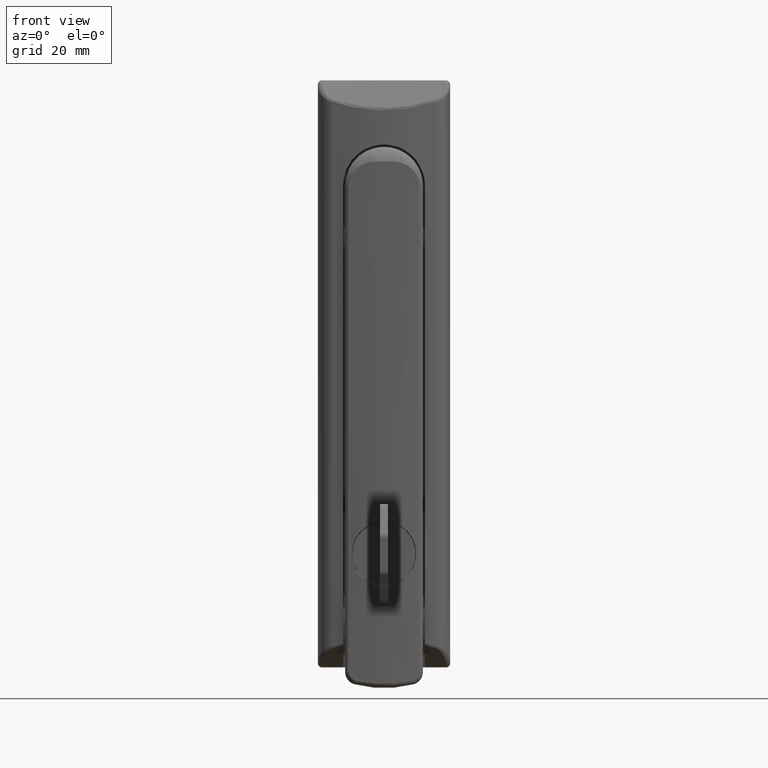
[diagram: clean part render]
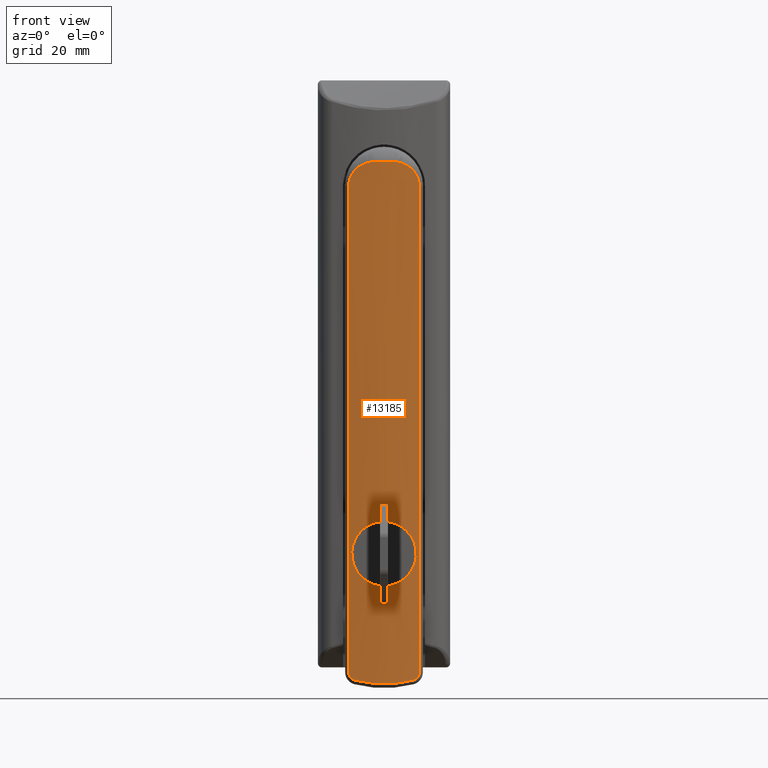
[diagram: same view with one face highlighted and labeled with its STEP entity id]
A machine part, front view. The second image highlights one B-rep face of the part: STEP entity #13185.
In plain terms, the highlighted face is a freeform B-spline surface patch.
Its self-contained STEP definition (entity closure, byte-faithful):
#9635=CARTESIAN_POINT('',(-27.451357045242741,-2.415340772851922,-81.583387166018241));
#9636=VERTEX_POINT('',#9635);
#9642=CARTESIAN_POINT('',(-27.500000000000000,1.306464E-014,-81.200000000007293));
#9643=VERTEX_POINT('',#9642);
#9644=CARTESIAN_POINT('',(-27.451357045242741,-2.415340772851922,-81.583387166018241));
#9645=CARTESIAN_POINT('',(-27.453211739908131,-2.369308168553388,-81.568397040841859));
#9646=CARTESIAN_POINT('',(-27.455020470757962,-2.323098384273979,-81.553823138580412));
#9647=CARTESIAN_POINT('',(-27.461420128162921,-2.154579051065332,-81.502395081543796));
#9648=CARTESIAN_POINT('',(-27.465731443055169,-2.031212702028281,-81.468022866388154));
#9649=CARTESIAN_POINT('',(-27.473656592597681,-1.781960849345053,-81.405191114793340));
#9650=CARTESIAN_POINT('',(-27.477269911358590,-1.656006917154755,-81.376736325688753));
#9651=CARTESIAN_POINT('',(-27.493345741603282,-1.025857236120205,-81.250682844681876));
#9652=CARTESIAN_POINT('',(-27.499998397768628,-0.515889527565438,-81.200000196492226));
#9653=CARTESIAN_POINT('',(-27.500000000000000,1.306464E-014,-81.200000000007293));
#9654=B_SPLINE_CURVE_WITH_KNOTS('',3,(#9644,#9645,#9646,#9647,#9648,#9649,#9650,#9651,#9652,#9653),.UNSPECIFIED.,.F.,.U.,(4,2,2,2,4),(0.950157689214994,0.953125000000003,0.960937500000003,0.968750000000002,1.0),.UNSPECIFIED.);
#9655=EDGE_CURVE('',#9636,#9643,#9654,.T.);
#9657=CARTESIAN_POINT('',(-27.499999927958910,0.002940226353203,-96.799999445860848));
#9658=VERTEX_POINT('',#9657);
#9659=CARTESIAN_POINT('',(-27.500000000000000,1.306464E-014,-81.200000000007293));
#9660=CARTESIAN_POINT('',(-27.499999999999812,0.515889656099083,-81.200000000007293));
#9661=CARTESIAN_POINT('',(-27.493352422148220,1.023050091287324,-81.250676094278390));
#9662=CARTESIAN_POINT('',(-27.474368604633650,1.771257197531436,-81.399519024339185));
#9663=CARTESIAN_POINT('',(-27.466537488519879,2.018555246376664,-81.461362184771559));
#9664=CARTESIAN_POINT('',(-27.452653990084020,2.386278578951864,-81.572882060211612));
#9665=CARTESIAN_POINT('',(-27.447658707667362,2.508569403155144,-81.613279586915382));
#9666=CARTESIAN_POINT('',(-27.437029032417382,2.750864545657644,-81.700047728719468));
#9667=CARTESIAN_POINT('',(-27.431415223854678,2.870442046210234,-81.746249702042405));
#9668=CARTESIAN_POINT('',(-27.401981792035919,3.460645862285785,-81.991061062496414));
#9669=CARTESIAN_POINT('',(-27.374072705129461,3.908440486208586,-82.230676933652632));
#9670=CARTESIAN_POINT('',(-27.335729340066479,4.438104879952905,-82.584436681970345));
#9671=CARTESIAN_POINT('',(-27.327887789421929,4.542520190924529,-82.657925366800015));
#9672=CARTESIAN_POINT('',(-27.311910040244239,4.748269618117722,-82.810465609458120));
#9673=CARTESIAN_POINT('',(-27.303750682207500,4.849877726817822,-82.889749533441531));
#9674=CARTESIAN_POINT('',(-27.279117326479760,5.147501351768049,-83.134070512664877));
#9675=CARTESIAN_POINT('',(-27.262492312349540,5.336390703450390,-83.305484680798031));
#9676=CARTESIAN_POINT('',(-27.212730676576982,5.875372978908299,-83.844587872839767));
#9677=CARTESIAN_POINT('',(-27.179698884055330,6.198047138616587,-84.236897171789806));
#9678=CARTESIAN_POINT('',(-27.140963680078489,6.554432985605673,-84.769652284682849));
#9679=CARTESIAN_POINT('',(-27.133327962796010,6.623488720678344,-84.878610451323368));
#9680=CARTESIAN_POINT('',(-27.118525670438590,6.755427716628378,-85.098634724829054));
#9681=CARTESIAN_POINT('',(-27.111344487383182,6.818450850832886,-85.209882413009495));
#9682=CARTESIAN_POINT('',(-27.090527267606848,6.998836643632352,-85.547270796965336));
#9683=CARTESIAN_POINT('',(-27.064708680080340,7.216235993070193,-86.006825721976284));
#9684=CARTESIAN_POINT('',(-27.043453029753639,7.388017962196979,-86.485567525968762));
#9685=CARTESIAN_POINT('',(-27.029482186582818,7.499476823494497,-86.851944508871540));
#9686=CARTESIAN_POINT('',(-27.025153782095440,7.533728318848084,-86.975292434707470));
#9687=CARTESIAN_POINT('',(-27.017198850373742,7.596317276772499,-87.224481220098866));
#9688=CARTESIAN_POINT('',(-27.013569805595729,7.624673633530243,-87.350506862727130));
#9689=CARTESIAN_POINT('',(-26.997455029889160,7.750036731856808,-87.979931032734612));
#9690=CARTESIAN_POINT('',(-26.990877031217149,7.799714747240953,-88.486372738068937));
#9691=CARTESIAN_POINT('',(-26.990821169457259,7.800140806667280,-89.250288177706452));
#9692=CARTESIAN_POINT('',(-26.992437348031000,7.787845697817852,-89.505640470593477));
#9693=CARTESIAN_POINT('',(-26.996535757393730,7.756434297262983,-89.825751353943602));
#9694=CARTESIAN_POINT('',(-26.997460853893390,7.749336418883022,-89.889903303123575));
#9695=CARTESIAN_POINT('',(-26.999508954675701,7.733595357016654,-90.017666780371343));
#9696=CARTESIAN_POINT('',(-27.002878820207791,7.707658700948612,-90.208634739015892));
#9697=CARTESIAN_POINT('',(-27.007122542060820,7.674828794079799,-90.397595106743168));
#9698=CARTESIAN_POINT('',(-27.023126749178470,7.550328871954661,-91.023076749933651));
#9699=CARTESIAN_POINT('',(-27.041877218375362,7.402947765226248,-91.509550193120077));
#9700=CARTESIAN_POINT('',(-27.071446100048579,7.158577595629029,-92.100178893099041));
#9701=CARTESIAN_POINT('',(-27.077666293560089,7.106669183584547,-92.217423686498847));
#9702=CARTESIAN_POINT('',(-27.090685635002821,6.996660161962202,-92.450117192411327));
#9703=CARTESIAN_POINT('',(-27.097450539301480,6.938845470194764,-92.564939115873898));
#9704=CARTESIAN_POINT('',(-27.118334657744509,6.757878484628711,-92.903402083161524));
#9705=CARTESIAN_POINT('',(-27.147823026717791,6.495951409212746,-93.340016228708649));
#9706=CARTESIAN_POINT('',(-27.179686522718949,6.193650390601179,-93.747993915109802));
#9707=CARTESIAN_POINT('',(-27.204138232443629,5.951676240675550,-94.043187263141903));
#9708=CARTESIAN_POINT('',(-27.212381145901620,5.868472233633442,-94.139783512705961));
#9709=CARTESIAN_POINT('',(-27.228994525056510,5.696897532528615,-94.329324480483976));
#9710=CARTESIAN_POINT('',(-27.237373823018050,5.608431413726285,-94.422364527513622));
#9711=CARTESIAN_POINT('',(-27.279349235395411,5.153906488468532,-94.877234704448398));
#9712=CARTESIAN_POINT('',(-27.312340728951099,4.760560945336541,-95.199593229621073));
#9713=CARTESIAN_POINT('',(-27.358235452438439,4.127518566634906,-95.623297114284341));
#9714=CARTESIAN_POINT('',(-27.372937442089619,3.909280448635201,-95.754484553407949));
#9715=CARTESIAN_POINT('',(-27.393757187540839,3.570802130110605,-95.935831309217818));
#9716=CARTESIAN_POINT('',(-27.400506029393242,3.455853886252413,-95.993826737790016));
#9717=CARTESIAN_POINT('',(-27.413463672452320,3.223417352786914,-96.103950949373726));
#9718=CARTESIAN_POINT('',(-27.419653787020469,3.106292350855165,-96.155925599638579));
#9719=CARTESIAN_POINT('',(-27.449078718175350,2.516218362956263,-96.400663406041360));
#9720=CARTESIAN_POINT('',(-27.467735551774059,2.030048300477598,-96.548453843878207));
#9721=CARTESIAN_POINT('',(-27.483683898734750,1.404747715240965,-96.673522631609572));
#9722=CARTESIAN_POINT('',(-27.486504869932610,1.278800357983251,-96.695525931637476));
#9723=CARTESIAN_POINT('',(-27.491376599358649,1.025100278002803,-96.733409283111939));
#9724=CARTESIAN_POINT('',(-27.493431399397210,0.896984538365097,-96.749320566103535));
#9725=CARTESIAN_POINT('',(-27.498354011209919,0.512918405447918,-96.787369048753547));
#9726=CARTESIAN_POINT('',(-27.499987449411751,0.257584846734793,-96.799903457030510));
#9727=CARTESIAN_POINT('',(-27.499999927958910,0.002940226352888,-96.799999445860834));
#9728=B_SPLINE_CURVE_WITH_KNOTS('',3,(#9659,#9660,#9661,#9662,#9663,#9664,#9665,#9666,#9667,#9668,#9669,#9670,#9671,#9672,#9673,#9674,#9675,#9676,#9677,#9678,#9679,#9680,#9681,#9682,#9683,#9684,#9685,#9686,#9687,#9688,#9689,#9690,#9691,#9692,#9693,#9694,#9695,#9696,#9697,#9698,#9699,#9700,#9701,#9702,#9703,#9704,#9705,#9706,#9707,#9708,#9709,#9710,#9711,#9712,#9713,#9714,#9715,#9716,#9717,#9718,#9719,#9720,#9721,#9722,#9723,#9724,#9725,#9726,#9727),.UNSPECIFIED.,.F.,.U.,(4,2,2,2,2,2,2,2,2,2,2,2,1,2,2,2,2,2,2,1,2,2,2,2,1,2,2,2,2,2,2,2,2,2,2,4),(0.0,0.031249999999997,0.046874999999995,0.054687499999994,0.062499999999993,0.093749999999991,0.101562499999990,0.109374999999990,0.124999999999990,0.156249999999989,0.164062499999989,0.171874999999989,0.187499999999988,0.203124999999988,0.210937499999988,0.218749999999987,0.249999999999989,0.265624999999990,0.269531249999990,0.273437499999991,0.281249999999991,0.312499999999992,0.320312499999992,0.328124999999992,0.343749999999993,0.359374999999994,0.367187499999994,0.374999999999995,0.406249999999998,0.421874999999999,0.429687500000000,0.437500000000001,0.468750000000004,0.476562500000005,0.484375000000005,0.500000000000006),.UNSPECIFIED.);
#9729=EDGE_CURVE('',#9643,#9658,#9728,.T.);
#9731=CARTESIAN_POINT('',(-26.993995364518589,-7.775955534954809,-89.611986974741882));
#9732=VERTEX_POINT('',#9731);
#9733=CARTESIAN_POINT('',(-27.499999927958910,0.002940226353203,-96.799999445860848));
#9734=CARTESIAN_POINT('',(-27.500025163954561,-0.506348986408025,-96.800191418448605));
#9735=CARTESIAN_POINT('',(-27.493566535412739,-1.012901785635003,-96.750984757780870));
#9736=CARTESIAN_POINT('',(-27.477644924085549,-1.642588869686279,-96.626164477850551));
#9737=CARTESIAN_POINT('',(-27.474057306665010,-1.768649151163232,-96.597919269611268));
#9738=CARTESIAN_POINT('',(-27.466190100713352,-2.017853934644223,-96.535566493649270));
#9739=CARTESIAN_POINT('',(-27.461906759094639,-2.141224198348409,-96.501430099627399));
#9740=CARTESIAN_POINT('',(-27.448072252203520,-2.507708341298642,-96.390303093229079));
#9741=CARTESIAN_POINT('',(-27.427001970499830,-2.986699904047397,-96.218927757564856));
#9742=CARTESIAN_POINT('',(-27.401347860448571,-3.446693818981062,-96.001817346647485));
#9743=CARTESIAN_POINT('',(-27.380637751369481,-3.784475376769318,-95.821585606063763));
#9744=CARTESIAN_POINT('',(-27.373489503804421,-3.895864785930623,-95.758603342305378));
#9745=CARTESIAN_POINT('',(-27.358746118966351,-4.116192781037065,-95.626721531216646));
#9746=CARTESIAN_POINT('',(-27.351147608516690,-4.225149514607681,-95.557782961195130));
#9747=CARTESIAN_POINT('',(-27.312593481464461,-4.757792801233011,-95.202092188590981));
#9748=CARTESIAN_POINT('',(-27.279636905637439,-5.150345471035728,-94.879833006506090));
#9749=CARTESIAN_POINT('',(-27.229855424745409,-5.690126310598955,-94.341074945516624));
#9750=CARTESIAN_POINT('',(-27.213202221529919,-5.861819276444642,-94.152193897877424));
#9751=CARTESIAN_POINT('',(-27.188495725111810,-6.106617499808759,-93.854454064378473));
#9752=CARTESIAN_POINT('',(-27.180328707819552,-6.185857428735949,-93.753054898967690));
#9753=CARTESIAN_POINT('',(-27.164318806868010,-6.338418573737759,-93.547616144776654));
#9754=CARTESIAN_POINT('',(-27.156456438883321,-6.411933608599551,-93.443343964339107));
#9755=CARTESIAN_POINT('',(-27.117987984481481,-6.765893163036848,-92.914329229255188));
#9756=CARTESIAN_POINT('',(-27.089910121214150,-7.005885227045035,-92.466845470525058));
#9757=CARTESIAN_POINT('',(-27.060239453152231,-7.251281470382709,-91.876673049449394));
#9758=CARTESIAN_POINT('',(-27.054576973176889,-7.297606194980376,-91.757083796541139));
#9759=CARTESIAN_POINT('',(-27.043849332599141,-7.384627350904450,-91.514725790372196));
#9760=CARTESIAN_POINT('',(-27.038815028560681,-7.425073564489634,-91.392626553008157));
#9761=CARTESIAN_POINT('',(-27.024803964249120,-7.536855094302378,-91.025182503691184));
#9762=CARTESIAN_POINT('',(-27.016889550231220,-7.598896733708958,-90.778029703857101));
#9763=CARTESIAN_POINT('',(-27.004081657105520,-7.698550203227406,-90.279431695171013));
#9764=CARTESIAN_POINT('',(-26.999187926578209,-7.736161183031477,-90.027986344768451));
#9765=CARTESIAN_POINT('',(-26.995184019090161,-7.766854632507582,-89.720350318984700));
#9766=CARTESIAN_POINT('',(-26.994553139640860,-7.771686534439469,-89.666219257281981));
#9767=CARTESIAN_POINT('',(-26.993995364518589,-7.775955534954809,-89.611986974741882));
#9768=B_SPLINE_CURVE_WITH_KNOTS('',3,(#9733,#9734,#9735,#9736,#9737,#9738,#9739,#9740,#9741,#9742,#9743,#9744,#9745,#9746,#9747,#9748,#9749,#9750,#9751,#9752,#9753,#9754,#9755,#9756,#9757,#9758,#9759,#9760,#9761,#9762,#9763,#9764,#9765,#9766,#9767),.UNSPECIFIED.,.F.,.U.,(4,2,2,2,1,2,2,2,2,2,2,2,2,2,2,2,2,4),(0.500000000000006,0.531250000000009,0.539062500000010,0.546875000000010,0.562500000000012,0.578125000000013,0.585937500000014,0.593750000000014,0.625000000000017,0.640625000000018,0.648437500000018,0.656250000000018,0.687500000000018,0.695312500000018,0.703125000000017,0.718750000000017,0.734375000000016,0.737703603077372),.UNSPECIFIED.);
#9769=EDGE_CURVE('',#9658,#9732,#9768,.T.);
#9861=CARTESIAN_POINT('',(-26.993995364518589,-7.775955534954809,-89.611986974741882));
#9862=CARTESIAN_POINT('',(-26.991934488523029,-7.791725925727036,-89.411644191013892));
#9863=CARTESIAN_POINT('',(-26.990871249455910,-7.799814497280295,-89.209920064450785));
#9864=CARTESIAN_POINT('',(-26.990785969016532,-7.800457593818249,-88.491226806938968));
#9865=CARTESIAN_POINT('',(-26.997428809062530,-7.750261464756480,-87.984053361813167));
#9866=CARTESIAN_POINT('',(-27.016479787427219,-7.602081716059938,-87.235624803400938));
#9867=CARTESIAN_POINT('',(-27.024345276534181,-7.540450323110390,-86.988218981328387));
#9868=CARTESIAN_POINT('',(-27.038294045762282,-7.429223020912744,-86.620283648133849));
#9869=CARTESIAN_POINT('',(-27.043315282020512,-7.388903698911442,-86.497873458007390));
#9870=CARTESIAN_POINT('',(-27.053988086469872,-7.302379602222043,-86.255589825231354));
#9871=CARTESIAN_POINT('',(-27.059624654852339,-7.256297446685645,-86.136006475107365));
#9872=CARTESIAN_POINT('',(-27.089175400534270,-7.012068827350035,-85.545719473031241));
#9873=CARTESIAN_POINT('',(-27.117189165122390,-6.772867378148150,-85.097687190942764));
#9874=CARTESIAN_POINT('',(-27.155639756495098,-6.419476718870008,-84.567557914596478));
#9875=CARTESIAN_POINT('',(-27.163501604755201,-6.346054347079001,-84.463041157485506));
#9876=CARTESIAN_POINT('',(-27.179516900352919,-6.193629217478030,-84.257072818005895));
#9877=CARTESIAN_POINT('',(-27.187692825886661,-6.114400086429294,-84.155357762235695));
#9878=CARTESIAN_POINT('',(-27.212347052509038,-5.870446282509747,-83.857657477435907));
#9879=CARTESIAN_POINT('',(-27.228977848985998,-5.699251393276296,-83.668670762862675));
#9880=CARTESIAN_POINT('',(-27.278731170791939,-5.160709066150552,-83.129286802320067));
#9881=CARTESIAN_POINT('',(-27.311722070594332,-4.768646070725239,-82.806198817969204));
#9882=CARTESIAN_POINT('',(-27.350375628547809,-4.235959857075176,-82.449192636913381));
#9883=CARTESIAN_POINT('',(-27.357989650598061,-4.127056504681613,-82.380043054774120));
#9884=CARTESIAN_POINT('',(-27.372739706503069,-3.907238880259893,-82.247969975953126));
#9885=CARTESIAN_POINT('',(-27.379894267262799,-3.796084657471326,-82.184871236569009));
#9886=CARTESIAN_POINT('',(-27.400631503111178,-3.458945993136178,-82.004237371410028));
#9887=CARTESIAN_POINT('',(-27.423901695406251,-3.043255009606523,-81.807130497885140));
#9888=CARTESIAN_POINT('',(-27.443446358675921,-2.611702591720686,-81.647330605626536));
#9889=CARTESIAN_POINT('',(-27.451357045242741,-2.415340772851922,-81.583387166018241));
#9890=B_SPLINE_CURVE_WITH_KNOTS('',3,(#9861,#9862,#9863,#9864,#9865,#9866,#9867,#9868,#9869,#9870,#9871,#9872,#9873,#9874,#9875,#9876,#9877,#9878,#9879,#9880,#9881,#9882,#9883,#9884,#9885,#9886,#9887,#9888,#9889),.UNSPECIFIED.,.F.,.U.,(4,2,2,2,2,2,2,2,2,2,2,2,2,1,4),(0.737703603077372,0.750000000000015,0.781250000000015,0.796875000000014,0.804687500000014,0.812500000000013,0.843750000000011,0.851562500000011,0.859375000000010,0.875000000000009,0.906250000000006,0.914062500000006,0.921875000000005,0.937500000000004,0.950157689214994),.UNSPECIFIED.);
#9891=EDGE_CURVE('',#9732,#9636,#9890,.T.);
#10572=CARTESIAN_POINT('',(-26.888785688507649,8.542372881354650,-117.666919538914400));
#10573=VERTEX_POINT('',#10572);
#10619=CARTESIAN_POINT('',(-27.086835916465098,7.029152542371470,-119.600273102027000));
#10620=VERTEX_POINT('',#10619);
#10634=CARTESIAN_POINT('',(-26.888785688507649,8.542372881354659,-117.666919538914400));
#10635=CARTESIAN_POINT('',(-26.888785688507649,8.542372881354661,-117.778429580445900));
#10636=CARTESIAN_POINT('',(-26.890142410241889,8.532955746309947,-117.888489649771400));
#10637=CARTESIAN_POINT('',(-26.894120570889260,8.505205989846363,-118.051482461089290));
#10638=CARTESIAN_POINT('',(-26.895771822093430,8.493673248735890,-118.105461987783300));
#10639=CARTESIAN_POINT('',(-26.899725023394350,8.465982680328386,-118.212709246327410));
#10640=CARTESIAN_POINT('',(-26.902039344670719,8.449737487748442,-118.266187622658800));
#10641=CARTESIAN_POINT('',(-26.909834634082721,8.394814853391216,-118.422933633941100));
#10642=CARTESIAN_POINT('',(-26.916173835669561,8.349918493369909,-118.523135106835700));
#10643=CARTESIAN_POINT('',(-26.927251447191729,8.270580297723328,-118.667221754916600));
#10644=CARTESIAN_POINT('',(-26.931206675452671,8.242124760782096,-118.714209265121400));
#10645=CARTESIAN_POINT('',(-26.939632098588831,8.181141940895504,-118.806075407870790));
#10646=CARTESIAN_POINT('',(-26.944125482358441,8.148444265719135,-118.851158341570000));
#10647=CARTESIAN_POINT('',(-26.958169719819448,8.045548261357341,-118.981293209644410));
#10648=CARTESIAN_POINT('',(-26.968268808286290,7.970675279274456,-119.061332750348300));
#10649=CARTESIAN_POINT('',(-26.984365046957251,7.849329896598491,-119.171736367242600));
#10650=CARTESIAN_POINT('',(-26.989889366140890,7.807367475855005,-119.206919749590600));
#10651=CARTESIAN_POINT('',(-27.001240151567099,7.720384972542755,-119.274021715263000));
#10652=CARTESIAN_POINT('',(-27.007087929446332,7.675198473840021,-119.306046356899500));
#10653=CARTESIAN_POINT('',(-27.024919882926032,7.536090150403438,-119.396327360637400));
#10654=CARTESIAN_POINT('',(-27.037059375279430,7.439670855515730,-119.448248637495400));
#10655=CARTESIAN_POINT('',(-27.061697596081121,7.239773543899861,-119.536271402606000));
#10656=CARTESIAN_POINT('',(-27.074196850597360,7.136295180044582,-119.572371973295900));
#10657=CARTESIAN_POINT('',(-27.086835916465098,7.029152542371470,-119.600273102027000));
#10658=B_SPLINE_CURVE_WITH_KNOTS('',3,(#10634,#10635,#10636,#10637,#10638,#10639,#10640,#10641,#10642,#10643,#10644,#10645,#10646,#10647,#10648,#10649,#10650,#10651,#10652,#10653,#10654,#10655,#10656,#10657),.UNSPECIFIED.,.F.,.U.,(4,2,2,2,2,2,2,2,2,2,2,4),(0.0,0.124999999999975,0.187499999999971,0.249999999999966,0.374999999999972,0.437499999999975,0.499999999999978,0.624999999999971,0.687499999999973,0.749999999999975,0.874999999999987,1.0),.UNSPECIFIED.);
#10659=EDGE_CURVE('',#10573,#10620,#10658,.T.);
#10744=CARTESIAN_POINT('',(-27.086835916469848,-7.029152542374240,-119.600273102025990));
#10745=VERTEX_POINT('',#10744);
#10759=CARTESIAN_POINT('',(-27.086835916465098,7.029152542371470,-119.600273102027000));
#10760=CARTESIAN_POINT('',(-27.222414991520509,5.879835032144018,-119.899568102618600));
#10761=CARTESIAN_POINT('',(-27.325403151724618,4.721194973908147,-120.123077242726590));
#10762=CARTESIAN_POINT('',(-27.463967757895229,2.385605788523836,-120.422818092129210));
#10763=CARTESIAN_POINT('',(-27.499554602358039,1.208656447267055,-120.499042944702790));
#10764=CARTESIAN_POINT('',(-27.500106161681501,-0.274268604688648,-120.500228116619100));
#10765=CARTESIAN_POINT('',(-27.498017795927360,-0.571442548221114,-120.495741702391300));
#10766=CARTESIAN_POINT('',(-27.489389347640689,-1.166984028825483,-120.477193840559200));
#10767=CARTESIAN_POINT('',(-27.482831745326351,-1.465816652340811,-120.463094706225800));
#10768=CARTESIAN_POINT('',(-27.456566867984328,-2.359020981342937,-120.406565310108600));
#10769=CARTESIAN_POINT('',(-27.430287108381410,-2.950969652483099,-120.349956597084700));
#10770=CARTESIAN_POINT('',(-27.325957729986769,-4.716452143417397,-120.124284808510590));
#10771=CARTESIAN_POINT('',(-27.222435623711348,-5.879660131015147,-119.899613648808400));
#10772=CARTESIAN_POINT('',(-27.086835916469848,-7.029152542374250,-119.600273102025990));
#10773=B_SPLINE_CURVE_WITH_KNOTS('',3,(#10759,#10760,#10761,#10762,#10763,#10764,#10765,#10766,#10767,#10768,#10769,#10770,#10771,#10772),.UNSPECIFIED.,.F.,.U.,(4,2,2,2,2,2,4),(0.0,0.250000000000000,0.500000000000000,0.562500000000000,0.625000000000000,0.750000000000000,1.0),.UNSPECIFIED.);
#10774=EDGE_CURVE('',#10620,#10745,#10773,.T.);
#10811=CARTESIAN_POINT('',(-26.888785688507649,8.542372881354670,-7.105427E-012));
#10812=VERTEX_POINT('',#10811);
#10834=CARTESIAN_POINT('',(-26.888785688507649,8.542372881354670,-7.105427E-012));
#10835=CARTESIAN_POINT('',(-26.888785688507649,8.542372881354650,-117.666919538914400));
#10836=QUASI_UNIFORM_CURVE('',1,(#10834,#10835),.UNSPECIFIED.,.F.,.U.);
#10837=EDGE_CURVE('',#10812,#10573,#10836,.T.);
#10922=CARTESIAN_POINT('',(-26.888785688513501,-8.542372881357158,-117.666919538913400));
#10923=VERTEX_POINT('',#10922);
#10937=CARTESIAN_POINT('',(-27.086835916469848,-7.029152542374240,-119.600273102025990));
#10938=CARTESIAN_POINT('',(-27.074196920697851,-7.136294585839297,-119.572372128033290));
#10939=CARTESIAN_POINT('',(-27.061681979821120,-7.239905324319176,-119.536236739324390));
#10940=CARTESIAN_POINT('',(-27.043158821610429,-7.390181654555567,-119.470028961198590));
#10941=CARTESIAN_POINT('',(-27.037026398630289,-7.439412816576947,-119.445948772571500));
#10942=CARTESIAN_POINT('',(-27.024861629460769,-7.536127881093952,-119.393703041655300));
#10943=CARTESIAN_POINT('',(-27.018806990409260,-7.583785053502241,-119.365422182941100));
#10944=CARTESIAN_POINT('',(-27.000989012494490,-7.722760628900465,-119.275079147185590));
#10945=CARTESIAN_POINT('',(-26.989654346052451,-7.809461173589753,-119.208066403258200));
#10946=CARTESIAN_POINT('',(-26.973558668908758,-7.930793388102964,-119.097590028556990));
#10947=CARTESIAN_POINT('',(-26.968345239325171,-7.969777032193718,-119.059096662112790));
#10948=CARTESIAN_POINT('',(-26.958246878498329,-8.044769081956250,-118.978709139629700));
#10949=CARTESIAN_POINT('',(-26.953349907780680,-8.080865494031807,-118.936702974056600));
#10950=CARTESIAN_POINT('',(-26.939279944065099,-8.183936051104972,-118.806114940377300));
#10951=CARTESIAN_POINT('',(-26.930878308029300,-8.244607357262673,-118.714491710671890));
#10952=CARTESIAN_POINT('',(-26.916120816826432,-8.350295445043049,-118.522349394263600));
#10953=CARTESIAN_POINT('',(-26.909756964715310,-8.395364882983117,-118.421688995024300));
#10954=CARTESIAN_POINT('',(-26.899337970182749,-8.468767491729491,-118.211546304653890));
#10955=CARTESIAN_POINT('',(-26.895418126799189,-8.496155077392864,-118.104842471380710));
#10956=CARTESIAN_POINT('',(-26.890142184890490,-8.532957096745951,-117.888282667833710));
#10957=CARTESIAN_POINT('',(-26.888785688513501,-8.542372881357146,-117.778426939522700));
#10958=CARTESIAN_POINT('',(-26.888785688513501,-8.542372881357158,-117.666919538913600));
#10959=B_SPLINE_CURVE_WITH_KNOTS('',3,(#10937,#10938,#10939,#10940,#10941,#10942,#10943,#10944,#10945,#10946,#10947,#10948,#10949,#10950,#10951,#10952,#10953,#10954,#10955,#10956,#10957,#10958),.UNSPECIFIED.,.F.,.U.,(4,2,2,2,2,2,2,2,2,2,4),(0.0,0.124999999999997,0.187499999999992,0.249999999999988,0.374999999999988,0.437499999999989,0.499999999999990,0.624999999999992,0.749999999999995,0.874999999999997,1.0),.UNSPECIFIED.);
#10960=EDGE_CURVE('',#10745,#10923,#10959,.T.);
#11112=CARTESIAN_POINT('',(-26.888785688513501,-8.542372881357158,-2.597922E-011));
#11113=VERTEX_POINT('',#11112);
#11168=CARTESIAN_POINT('',(-26.888785688513501,-8.542372881357158,-2.597922E-011));
#11169=CARTESIAN_POINT('',(-26.889060793614611,-8.540461433807419,0.111908788715269));
#11170=CARTESIAN_POINT('',(-26.889607997854700,-8.536659424317739,0.334503584380799));
#11171=CARTESIAN_POINT('',(-26.894057415341479,-8.505673466357870,0.665768538915277));
#11172=CARTESIAN_POINT('',(-26.901143416680760,-8.456083295707797,0.992147089120100));
#11173=CARTESIAN_POINT('',(-26.911068560333799,-8.386124383212787,1.313625108534763));
#11174=CARTESIAN_POINT('',(-26.923694896865889,-8.296254984429599,1.630186935471665));
#11175=CARTESIAN_POINT('',(-26.938948555786592,-8.186345427481188,1.941818592799301));
#11176=CARTESIAN_POINT('',(-26.956713217987630,-8.056417873806254,2.248507284132500));
#11177=CARTESIAN_POINT('',(-26.976854795151301,-7.906477965946521,2.550246519618773));
#11178=CARTESIAN_POINT('',(-26.999230314092280,-7.736443022254136,2.847020365105872));
#11179=CARTESIAN_POINT('',(-27.039906005838901,-7.419934292489797,3.333599158243297));
#11180=CARTESIAN_POINT('',(-27.103955462166379,-6.896072250743217,3.967903385795556));
#11181=CARTESIAN_POINT('',(-27.193733772940590,-6.076150266717725,4.655992195713410));
#11182=CARTESIAN_POINT('',(-27.289934837509129,-5.058072203537618,5.248699121315499));
#11183=CARTESIAN_POINT('',(-27.384323772984001,-3.810591610910118,5.692810870802503));
#11184=CARTESIAN_POINT('',(-27.454939256228869,-2.454705279000979,5.899348451783753));
#11185=CARTESIAN_POINT('',(-27.487006932639080,-1.357578971887023,5.917115846582353));
#11186=CARTESIAN_POINT('',(-27.498234927757899,-0.565780877142598,5.908882882290454));
#11187=CARTESIAN_POINT('',(-27.500904082879000,0.004494835565734,5.899383436624254));
#11188=CARTESIAN_POINT('',(-27.498147516464272,0.575230787981571,5.893554080287181));
#11189=CARTESIAN_POINT('',(-27.490984641834931,1.074614370009674,5.910738222681507));
#11190=CARTESIAN_POINT('',(-27.481130561649191,1.520942532908516,5.918366422781512));
#11191=CARTESIAN_POINT('',(-27.469425240578762,1.931822261100164,5.903110236270135));
#11192=CARTESIAN_POINT('',(-27.447151379871379,2.554231113896980,5.865209244168603));
#11193=CARTESIAN_POINT('',(-27.408858974850919,3.351918138700240,5.764783789916142));
#11194=CARTESIAN_POINT('',(-27.349552784804089,4.277167090586146,5.530859609593200));
#11195=CARTESIAN_POINT('',(-27.264338833680490,5.355886997389605,5.104079582233098));
#11196=CARTESIAN_POINT('',(-27.148444879280579,6.525139014874834,4.365298389487940));
#11197=CARTESIAN_POINT('',(-27.038833595001240,7.435187341524785,3.359043226351391));
#11198=CARTESIAN_POINT('',(-26.966675273953509,7.985001030775643,2.426807940362544));
#11199=CARTESIAN_POINT('',(-26.928237162274129,8.264334923009704,1.736111503347196));
#11200=CARTESIAN_POINT('',(-26.904451831394251,8.433025234620619,1.106806361588443));
#11201=CARTESIAN_POINT('',(-26.891251929748680,8.525256091544287,0.554386253737978));
#11202=CARTESIAN_POINT('',(-26.889606004871389,8.536679528028570,0.184398877165029));
#11203=CARTESIAN_POINT('',(-26.888785688507649,8.542372881354670,-7.105427E-012));
#11204=B_SPLINE_CURVE_WITH_KNOTS('',3,(#11168,#11169,#11170,#11171,#11172,#11173,#11174,#11175,#11176,#11177,#11178,#11179,#11180,#11181,#11182,#11183,#11184,#11185,#11186,#11187,#11188,#11189,#11190,#11191,#11192,#11193,#11194,#11195,#11196,#11197,#11198,#11199,#11200,#11201,#11202,#11203),.UNSPECIFIED.,.F.,.U.,(4,1,1,1,1,1,1,1,1,1,1,1,1,1,1,1,1,1,1,1,1,1,1,1,1,1,1,1,1,1,1,1,1,4),(0.0,0.014245915702551,0.028336172080325,0.042324307199432,0.056265035725348,0.070213630187473,0.084225270004467,0.098354395939613,0.112654106932360,0.127175630735657,0.141967890727336,0.186718605939140,0.231615439416530,0.278035350490219,0.336516420837330,0.399506182187129,0.451945324655337,0.476141391859511,0.500339107694371,0.524564142649969,0.548795613549962,0.563957708850409,0.581399758069744,0.601145449131221,0.643401475657427,0.683662147581303,0.722538373101568,0.791169390439855,0.858328015775603,0.893617585320205,0.928882032595608,0.952915300301030,0.976533345984492,1.0),.UNSPECIFIED.);
#11205=EDGE_CURVE('',#11113,#10812,#11204,.T.);
#11231=CARTESIAN_POINT('',(-26.888785688513501,-8.542372881357158,-117.666919538913400));
#11232=CARTESIAN_POINT('',(-26.888785688513501,-8.542372881357158,-2.597922E-011));
#11233=QUASI_UNIFORM_CURVE('',1,(#11231,#11232),.UNSPECIFIED.,.F.,.U.);
#11234=EDGE_CURVE('',#10923,#11113,#11233,.T.);
#13157=CARTESIAN_POINT('',(-26.761441832918493,-9.385175112059486,-123.660331828575820));
#13158=CARTESIAN_POINT('',(-26.761441832918493,-9.385175112059486,9.152613164200105));
#13159=CARTESIAN_POINT('',(-28.247852200585584,0.000565749649632,-123.660331828575830));
#13160=CARTESIAN_POINT('',(-28.247852200585584,0.000565749649632,9.152613164200105));
#13161=CARTESIAN_POINT('',(-26.761267012845636,9.386278923610183,-123.660331828575830));
#13162=CARTESIAN_POINT('',(-26.761267012845636,9.386278923610183,9.152613164200105));
#13170=(BOUNDED_SURFACE()B_SPLINE_SURFACE(1,2,((#13157,#13159,#13161),(#13158,#13160,#13162)),.UNSPECIFIED.,.F.,.F.,.U.)B_SPLINE_SURFACE_WITH_KNOTS((2,2),(3,3),(0.0,132.812944992775900),(0.0,18.887712860029470),.UNSPECIFIED.)GEOMETRIC_REPRESENTATION_ITEM()RATIONAL_B_SPLINE_SURFACE(((0.997653459990146,0.984695807590274,0.996285522066284),(0.997653459990146,0.984695807590274,0.996285522066284)))REPRESENTATION_ITEM('')SURFACE());
#13171=ORIENTED_EDGE('',*,*,#10774,.T.);
#13172=ORIENTED_EDGE('',*,*,#10960,.T.);
#13173=ORIENTED_EDGE('',*,*,#11234,.T.);
#13174=ORIENTED_EDGE('',*,*,#11205,.T.);
#13175=ORIENTED_EDGE('',*,*,#10837,.T.);
#13176=ORIENTED_EDGE('',*,*,#10659,.T.);
#13177=EDGE_LOOP('',(#13171,#13172,#13173,#13174,#13175,#13176));
#13178=FACE_OUTER_BOUND('',#13177,.T.);
#13179=ORIENTED_EDGE('',*,*,#9729,.F.);
#13180=ORIENTED_EDGE('',*,*,#9655,.F.);
#13181=ORIENTED_EDGE('',*,*,#9891,.F.);
#13182=ORIENTED_EDGE('',*,*,#9769,.F.);
#13183=EDGE_LOOP('',(#13179,#13180,#13181,#13182));
#13184=FACE_BOUND('',#13183,.T.);
#13185=ADVANCED_FACE('',(#13178,#13184),#13170,.T.);